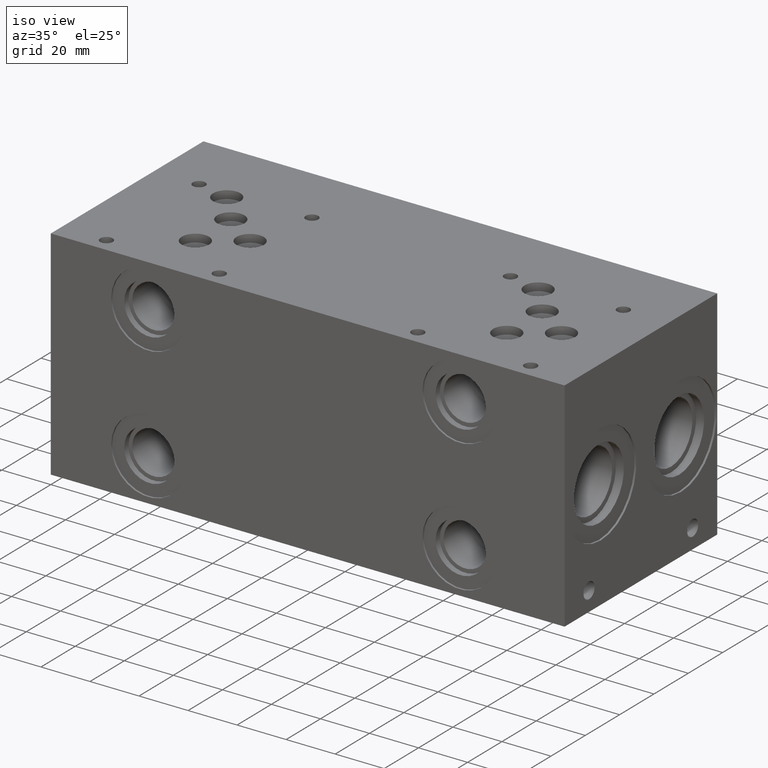
[diagram: clean part render]
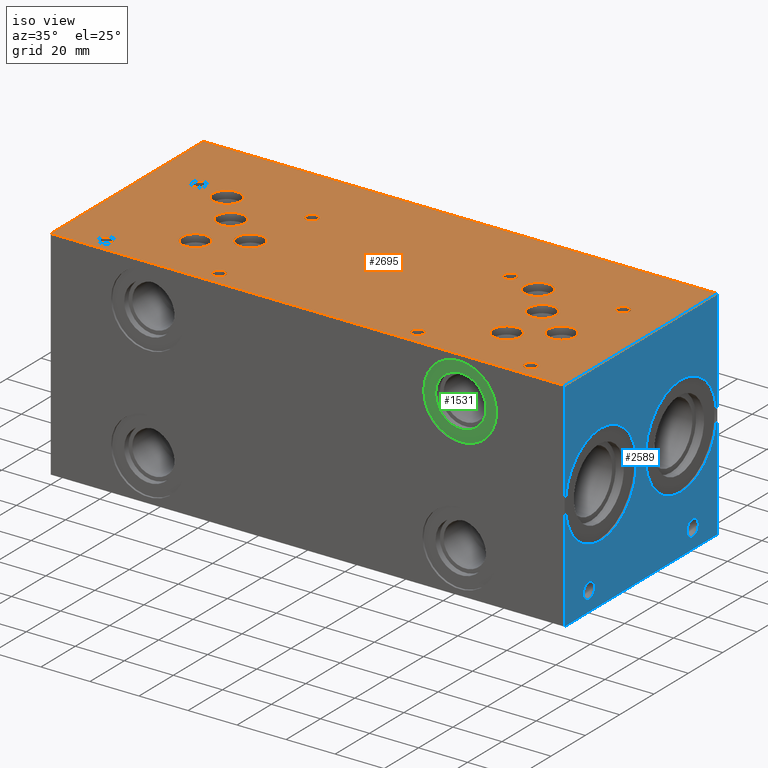
[diagram: same view with three faces highlighted in distinct colors, each labeled with its STEP entity id]
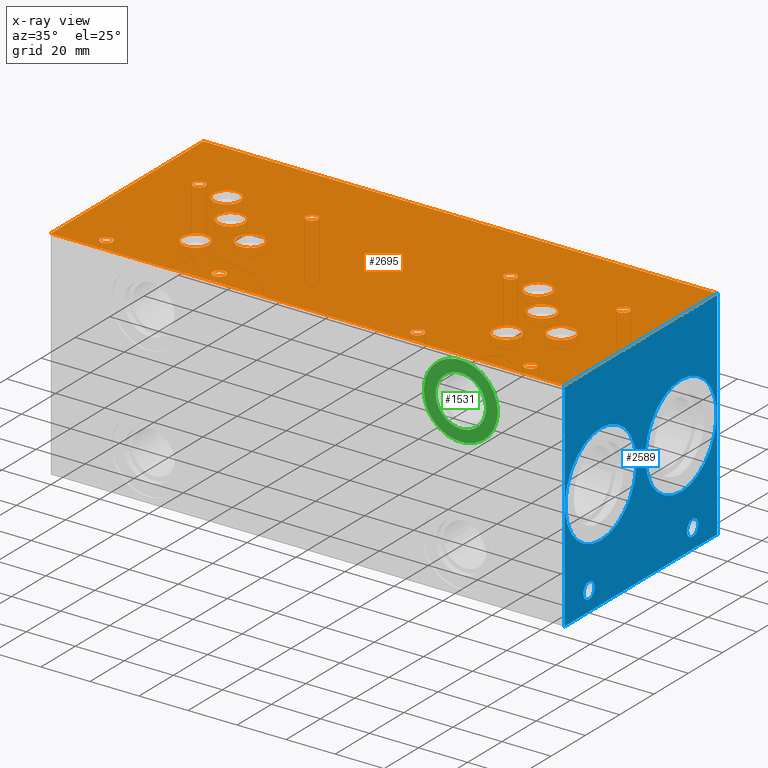
[diagram: x-ray of the same camera — body ghosted, the three highlighted faces saturated]
A machine part, iso view with three faces highlighted in distinct colors.
The next image is the same camera in x-ray (body ghosted, the three faces saturated) — at least one of them is partly hidden behind the body in this view.
Their STEP definitions:

[orange] entity #2695 — the highlighted planar face has unit normal (0, 0, 1).
#1574=CARTESIAN_POINT('',(175.43779999999998,23.0124,88.900000000000006));
#1575=VERTEX_POINT('',#1574);
#1576=CARTESIAN_POINT('',(169.87520000000001,23.0124,88.900000000000006));
#1577=DIRECTION('',(0.0,0.0,-1.0));
#1578=DIRECTION('',(1.0,0.0,0.0));
#1579=AXIS2_PLACEMENT_3D('',#1576,#1577,#1578);
#1580=CIRCLE('',#1579,5.562599999999982);
#1581=EDGE_CURVE('',#1575,#1575,#1580,.T.);
#1611=CARTESIAN_POINT('',(175.43779999999998,43.6372,88.900000000000006));
#1612=VERTEX_POINT('',#1611);
#1613=CARTESIAN_POINT('',(169.87520000000001,43.6372,88.900000000000006));
#1614=DIRECTION('',(0.0,0.0,-1.0));
#1615=DIRECTION('',(1.0,0.0,0.0));
#1616=AXIS2_PLACEMENT_3D('',#1613,#1614,#1615);
#1617=CIRCLE('',#1616,5.562599999999982);
#1618=EDGE_CURVE('',#1612,#1612,#1617,.T.);
#1648=CARTESIAN_POINT('',(164.31260000000003,57.149999999999999,88.900000000000006));
#1649=VERTEX_POINT('',#1648);
#1650=CARTESIAN_POINT('',(158.75,57.149999999999999,88.900000000000006));
#1651=DIRECTION('',(0.0,0.0,-1.0));
#1652=DIRECTION('',(1.0,0.0,0.0));
#1653=AXIS2_PLACEMENT_3D('',#1650,#1651,#1652);
#1654=CIRCLE('',#1653,5.562600000000018);
#1655=EDGE_CURVE('',#1649,#1649,#1654,.T.);
#1685=CARTESIAN_POINT('',(190.52539999999999,33.324800000000003,88.900000000000006));
#1686=VERTEX_POINT('',#1685);
#1687=CARTESIAN_POINT('',(184.96279999999999,33.324800000000003,88.900000000000006));
#1688=DIRECTION('',(0.0,0.0,-1.0));
#1689=DIRECTION('',(1.0,0.0,0.0));
#1690=AXIS2_PLACEMENT_3D('',#1687,#1688,#1689);
#1691=CIRCLE('',#1690,5.562600000000018);
#1692=EDGE_CURVE('',#1686,#1686,#1691,.T.);
#1722=CARTESIAN_POINT('',(147.78989999999999,6.35,88.900000000000006));
#1723=VERTEX_POINT('',#1722);
#1724=CARTESIAN_POINT('',(145.2372,6.35,88.900000000000006));
#1725=DIRECTION('',(0.0,0.0,-1.0));
#1726=DIRECTION('',(1.0,0.0,0.0));
#1727=AXIS2_PLACEMENT_3D('',#1724,#1725,#1726);
#1728=CIRCLE('',#1727,2.552699999999994);
#1729=EDGE_CURVE('',#1723,#1723,#1728,.T.);
#1759=CARTESIAN_POINT('',(193.84010000000001,6.35,88.900000000000006));
#1760=VERTEX_POINT('',#1759);
#1761=CARTESIAN_POINT('',(191.28739999999999,6.35,88.900000000000006));
#1762=DIRECTION('',(0.0,0.0,-1.0));
#1763=DIRECTION('',(1.0,0.0,0.0));
#1764=AXIS2_PLACEMENT_3D('',#1761,#1762,#1763);
#1765=CIRCLE('',#1764,2.552699999999994);
#1766=EDGE_CURVE('',#1760,#1760,#1765,.T.);
#1796=CARTESIAN_POINT('',(193.84010000000001,60.325000000000003,88.900000000000006));
#1797=VERTEX_POINT('',#1796);
#1798=CARTESIAN_POINT('',(191.28739999999999,60.325000000000003,88.900000000000006));
#1799=DIRECTION('',(0.0,0.0,-1.0));
#1800=DIRECTION('',(1.0,0.0,0.0));
#1801=AXIS2_PLACEMENT_3D('',#1798,#1799,#1800);
#1802=CIRCLE('',#1801,2.552699999999994);
#1803=EDGE_CURVE('',#1797,#1797,#1802,.T.);
#1833=CARTESIAN_POINT('',(147.78989999999999,60.325000000000003,88.900000000000006));
#1834=VERTEX_POINT('',#1833);
#1835=CARTESIAN_POINT('',(145.2372,60.325000000000003,88.900000000000006));
#1836=DIRECTION('',(0.0,0.0,-1.0));
#1837=DIRECTION('',(1.0,0.0,0.0));
#1838=AXIS2_PLACEMENT_3D('',#1835,#1836,#1837);
#1839=CIRCLE('',#1838,2.552699999999994);
#1840=EDGE_CURVE('',#1834,#1834,#1839,.T.);
#2184=CARTESIAN_POINT('',(48.43018,23.00732,88.900000000000006));
#2185=VERTEX_POINT('',#2184);
#2186=CARTESIAN_POINT('',(42.867579999999997,23.00732,88.900000000000006));
#2187=DIRECTION('',(0.0,0.0,-1.0));
#2188=DIRECTION('',(1.0,0.0,0.0));
#2189=AXIS2_PLACEMENT_3D('',#2186,#2187,#2188);
#2190=CIRCLE('',#2189,5.5626);
#2191=EDGE_CURVE('',#2185,#2185,#2190,.T.);
#2221=CARTESIAN_POINT('',(48.4251,43.64228,88.900000000000006));
#2222=VERTEX_POINT('',#2221);
#2223=CARTESIAN_POINT('',(42.862499999999997,43.64228,88.900000000000006));
#2224=DIRECTION('',(0.0,0.0,-1.0));
#2225=DIRECTION('',(1.0,0.0,0.0));
#2226=AXIS2_PLACEMENT_3D('',#2223,#2224,#2225);
#2227=CIRCLE('',#2226,5.5626);
#2228=EDGE_CURVE('',#2222,#2222,#2227,.T.);
#2258=CARTESIAN_POINT('',(37.312600000000003,57.149999999999999,88.900000000000006));
#2259=VERTEX_POINT('',#2258);
#2260=CARTESIAN_POINT('',(31.750000000000004,57.149999999999999,88.900000000000006));
#2261=DIRECTION('',(0.0,0.0,-1.0));
#2262=DIRECTION('',(1.0,0.0,0.0));
#2263=AXIS2_PLACEMENT_3D('',#2260,#2261,#2262);
#2264=CIRCLE('',#2263,5.5626);
#2265=EDGE_CURVE('',#2259,#2259,#2264,.T.);
#2295=CARTESIAN_POINT('',(63.525400000000005,33.324800000000003,88.900000000000006));
#2296=VERTEX_POINT('',#2295);
#2297=CARTESIAN_POINT('',(57.962800000000001,33.324800000000003,88.900000000000006));
#2298=DIRECTION('',(0.0,0.0,-1.0));
#2299=DIRECTION('',(1.0,0.0,0.0));
#2300=AXIS2_PLACEMENT_3D('',#2297,#2298,#2299);
#2301=CIRCLE('',#2300,5.5626);
#2302=EDGE_CURVE('',#2296,#2296,#2301,.T.);
#2332=CARTESIAN_POINT('',(20.802599999999998,6.3373,88.900000000000006));
#2333=VERTEX_POINT('',#2332);
#2334=CARTESIAN_POINT('',(18.2499,6.3373,88.900000000000006));
#2335=DIRECTION('',(0.0,0.0,-1.0));
#2336=DIRECTION('',(1.0,0.0,0.0));
#2337=AXIS2_PLACEMENT_3D('',#2334,#2335,#2336);
#2338=CIRCLE('',#2337,2.552699999999999);
#2339=EDGE_CURVE('',#2333,#2333,#2338,.T.);
#2369=CARTESIAN_POINT('',(66.840100000000021,6.3373,88.900000000000006));
#2370=VERTEX_POINT('',#2369);
#2371=CARTESIAN_POINT('',(64.287400000000019,6.3373,88.900000000000006));
#2372=DIRECTION('',(0.0,0.0,-1.0));
#2373=DIRECTION('',(1.0,0.0,0.0));
#2374=AXIS2_PLACEMENT_3D('',#2371,#2372,#2373);
#2375=CIRCLE('',#2374,2.552700000000003);
#2376=EDGE_CURVE('',#2370,#2370,#2375,.T.);
#2406=CARTESIAN_POINT('',(66.840100000000021,60.312300000000008,88.900000000000006));
#2407=VERTEX_POINT('',#2406);
#2408=CARTESIAN_POINT('',(64.287400000000019,60.312300000000008,88.900000000000006));
#2409=DIRECTION('',(0.0,0.0,-1.0));
#2410=DIRECTION('',(1.0,0.0,0.0));
#2411=AXIS2_PLACEMENT_3D('',#2408,#2409,#2410);
#2412=CIRCLE('',#2411,2.552700000000003);
#2413=EDGE_CURVE('',#2407,#2407,#2412,.T.);
#2443=CARTESIAN_POINT('',(20.789900000000003,60.325000000000003,88.900000000000006));
#2444=VERTEX_POINT('',#2443);
#2445=CARTESIAN_POINT('',(18.237200000000001,60.325000000000003,88.900000000000006));
#2446=DIRECTION('',(0.0,0.0,-1.0));
#2447=DIRECTION('',(1.0,0.0,0.0));
#2448=AXIS2_PLACEMENT_3D('',#2445,#2446,#2447);
#2449=CIRCLE('',#2448,2.552699999999999);
#2450=EDGE_CURVE('',#2444,#2444,#2449,.T.);
#2463=CARTESIAN_POINT('',(0.0,0.0,88.900000000000006));
#2464=VERTEX_POINT('',#2463);
#2465=CARTESIAN_POINT('',(0.0,88.900000000000006,88.900000000000006));
#2466=VERTEX_POINT('',#2465);
#2467=CARTESIAN_POINT('',(0.0,0.0,88.900000000000006));
#2468=DIRECTION('',(0.0,1.0,0.0));
#2469=VECTOR('',#2468,88.900000000000006);
#2470=LINE('',#2467,#2469);
#2471=EDGE_CURVE('',#2464,#2466,#2470,.T.);
#2515=CARTESIAN_POINT('',(209.55000000000001,88.900000000000006,88.900000000000006));
#2516=VERTEX_POINT('',#2515);
#2517=CARTESIAN_POINT('',(0.0,88.900000000000006,88.900000000000006));
#2518=DIRECTION('',(1.0,0.0,0.0));
#2519=VECTOR('',#2518,209.55000000000001);
#2520=LINE('',#2517,#2519);
#2521=EDGE_CURVE('',#2466,#2516,#2520,.T.);
#2552=CARTESIAN_POINT('',(209.55000000000001,0.0,88.900000000000006));
#2553=VERTEX_POINT('',#2552);
#2554=CARTESIAN_POINT('',(209.55000000000001,88.900000000000006,88.900000000000006));
#2555=DIRECTION('',(0.0,-1.0,0.0));
#2556=VECTOR('',#2555,88.900000000000006);
#2557=LINE('',#2554,#2556);
#2558=EDGE_CURVE('',#2516,#2553,#2557,.T.);
#2595=CARTESIAN_POINT('',(209.55000000000001,0.0,88.900000000000006));
#2596=DIRECTION('',(-1.0,0.0,0.0));
#2597=VECTOR('',#2596,209.55000000000001);
#2598=LINE('',#2595,#2597);
#2599=EDGE_CURVE('',#2553,#2464,#2598,.T.);
#2636=CARTESIAN_POINT('',(104.77500000000003,44.450000000000003,88.900000000000006));
#2637=DIRECTION('',(0.0,0.0,1.0));
#2638=DIRECTION('',(1.0,0.0,0.0));
#2639=AXIS2_PLACEMENT_3D('',#2636,#2637,#2638);
#2640=PLANE('',#2639);
#2641=ORIENTED_EDGE('',*,*,#2471,.F.);
#2642=ORIENTED_EDGE('',*,*,#2599,.F.);
#2643=ORIENTED_EDGE('',*,*,#2558,.F.);
#2644=ORIENTED_EDGE('',*,*,#2521,.F.);
#2645=EDGE_LOOP('',(#2641,#2642,#2643,#2644));
#2646=FACE_OUTER_BOUND('',#2645,.T.);
#2647=ORIENTED_EDGE('',*,*,#1581,.T.);
#2648=EDGE_LOOP('',(#2647));
#2649=FACE_BOUND('',#2648,.T.);
#2650=ORIENTED_EDGE('',*,*,#1618,.T.);
#2651=EDGE_LOOP('',(#2650));
#2652=FACE_BOUND('',#2651,.T.);
#2653=ORIENTED_EDGE('',*,*,#1655,.T.);
#2654=EDGE_LOOP('',(#2653));
#2655=FACE_BOUND('',#2654,.T.);
#2656=ORIENTED_EDGE('',*,*,#1692,.T.);
#2657=EDGE_LOOP('',(#2656));
#2658=FACE_BOUND('',#2657,.T.);
#2659=ORIENTED_EDGE('',*,*,#1729,.T.);
#2660=EDGE_LOOP('',(#2659));
#2661=FACE_BOUND('',#2660,.T.);
#2662=ORIENTED_EDGE('',*,*,#1766,.T.);
#2663=EDGE_LOOP('',(#2662));
#2664=FACE_BOUND('',#2663,.T.);
#2665=ORIENTED_EDGE('',*,*,#1803,.T.);
#2666=EDGE_LOOP('',(#2665));
#2667=FACE_BOUND('',#2666,.T.);
#2668=ORIENTED_EDGE('',*,*,#1840,.T.);
#2669=EDGE_LOOP('',(#2668));
#2670=FACE_BOUND('',#2669,.T.);
#2671=ORIENTED_EDGE('',*,*,#2191,.T.);
#2672=EDGE_LOOP('',(#2671));
#2673=FACE_BOUND('',#2672,.T.);
#2674=ORIENTED_EDGE('',*,*,#2228,.T.);
#2675=EDGE_LOOP('',(#2674));
#2676=FACE_BOUND('',#2675,.T.);
#2677=ORIENTED_EDGE('',*,*,#2265,.T.);
#2678=EDGE_LOOP('',(#2677));
#2679=FACE_BOUND('',#2678,.T.);
#2680=ORIENTED_EDGE('',*,*,#2302,.T.);
#2681=EDGE_LOOP('',(#2680));
#2682=FACE_BOUND('',#2681,.T.);
#2683=ORIENTED_EDGE('',*,*,#2339,.T.);
#2684=EDGE_LOOP('',(#2683));
#2685=FACE_BOUND('',#2684,.T.);
#2686=ORIENTED_EDGE('',*,*,#2376,.T.);
#2687=EDGE_LOOP('',(#2686));
#2688=FACE_BOUND('',#2687,.T.);
#2689=ORIENTED_EDGE('',*,*,#2413,.T.);
#2690=EDGE_LOOP('',(#2689));
#2691=FACE_BOUND('',#2690,.T.);
#2692=ORIENTED_EDGE('',*,*,#2450,.T.);
#2693=EDGE_LOOP('',(#2692));
#2694=FACE_BOUND('',#2693,.T.);
#2695=ADVANCED_FACE('',(#2646,#2649,#2652,#2655,#2658,#2661,#2664,#2667,#2670,#2673,#2676,#2679,#2682,#2685,#2688,#2691,#2694),#2640,.T.);

[blue] entity #2589 — the highlighted planar face has unit normal (1, 0, 0).
#287=CARTESIAN_POINT('',(209.55000000000001,74.599800000000002,4.660900000000001));
#288=VERTEX_POINT('',#287);
#289=CARTESIAN_POINT('',(209.55000000000001,74.599800000000002,7.924800000000001));
#290=DIRECTION('',(-1.0,0.0,0.0));
#291=DIRECTION('',(0.0,0.0,-1.0));
#292=AXIS2_PLACEMENT_3D('',#289,#290,#291);
#293=CIRCLE('',#292,3.2639);
#294=EDGE_CURVE('',#288,#288,#293,.T.);
#324=CARTESIAN_POINT('',(209.55000000000001,14.274800000000001,4.660900000000001));
#325=VERTEX_POINT('',#324);
#326=CARTESIAN_POINT('',(209.55000000000001,14.274800000000001,7.924800000000001));
#327=DIRECTION('',(-1.0,0.0,0.0));
#328=DIRECTION('',(0.0,0.0,-1.0));
#329=AXIS2_PLACEMENT_3D('',#326,#327,#328);
#330=CIRCLE('',#329,3.2639);
#331=EDGE_CURVE('',#325,#325,#330,.T.);
#752=CARTESIAN_POINT('',(209.55000000000001,67.818000000000012,23.723600000000001));
#753=VERTEX_POINT('',#752);
#754=CARTESIAN_POINT('',(209.55000000000001,67.818000000000012,44.450000000000003));
#755=DIRECTION('',(-1.0,0.0,0.0));
#756=DIRECTION('',(0.0,0.0,-1.0));
#757=AXIS2_PLACEMENT_3D('',#754,#755,#756);
#758=CIRCLE('',#757,20.726400000000002);
#759=EDGE_CURVE('',#753,#753,#758,.T.);
#909=CARTESIAN_POINT('',(209.55000000000001,21.082000000000001,23.723600000000001));
#910=VERTEX_POINT('',#909);
#911=CARTESIAN_POINT('',(209.55000000000001,21.082000000000001,44.450000000000003));
#912=DIRECTION('',(-1.0,0.0,0.0));
#913=DIRECTION('',(0.0,0.0,-1.0));
#914=AXIS2_PLACEMENT_3D('',#911,#912,#913);
#915=CIRCLE('',#914,20.726400000000002);
#916=EDGE_CURVE('',#910,#910,#915,.T.);
#2515=CARTESIAN_POINT('',(209.55000000000001,88.900000000000006,88.900000000000006));
#2516=VERTEX_POINT('',#2515);
#2523=CARTESIAN_POINT('',(209.55000000000001,88.900000000000006,0.0));
#2524=VERTEX_POINT('',#2523);
#2525=CARTESIAN_POINT('',(209.55000000000001,88.900000000000006,0.0));
#2526=DIRECTION('',(0.0,0.0,1.0));
#2527=VECTOR('',#2526,88.900000000000006);
#2528=LINE('',#2525,#2527);
#2529=EDGE_CURVE('',#2524,#2516,#2528,.T.);
#2547=CARTESIAN_POINT('',(209.55000000000001,88.900000000000006,0.0));
#2548=DIRECTION('',(1.0,0.0,0.0));
#2549=DIRECTION('',(0.0,0.0,-1.0));
#2550=AXIS2_PLACEMENT_3D('',#2547,#2548,#2549);
#2551=PLANE('',#2550);
#2552=CARTESIAN_POINT('',(209.55000000000001,0.0,88.900000000000006));
#2553=VERTEX_POINT('',#2552);
#2554=CARTESIAN_POINT('',(209.55000000000001,88.900000000000006,88.900000000000006));
#2555=DIRECTION('',(0.0,-1.0,0.0));
#2556=VECTOR('',#2555,88.900000000000006);
#2557=LINE('',#2554,#2556);
#2558=EDGE_CURVE('',#2516,#2553,#2557,.T.);
#2559=ORIENTED_EDGE('',*,*,#2558,.T.);
#2560=CARTESIAN_POINT('',(209.55000000000001,0.0,0.0));
#2561=VERTEX_POINT('',#2560);
#2562=CARTESIAN_POINT('',(209.55000000000001,0.0,0.0));
#2563=DIRECTION('',(0.0,0.0,1.0));
#2564=VECTOR('',#2563,88.900000000000006);
#2565=LINE('',#2562,#2564);
#2566=EDGE_CURVE('',#2561,#2553,#2565,.T.);
#2567=ORIENTED_EDGE('',*,*,#2566,.F.);
#2568=CARTESIAN_POINT('',(209.55000000000001,0.0,0.0));
#2569=DIRECTION('',(0.0,1.0,0.0));
#2570=VECTOR('',#2569,88.900000000000006);
#2571=LINE('',#2568,#2570);
#2572=EDGE_CURVE('',#2561,#2524,#2571,.T.);
#2573=ORIENTED_EDGE('',*,*,#2572,.T.);
#2574=ORIENTED_EDGE('',*,*,#2529,.T.);
#2575=EDGE_LOOP('',(#2559,#2567,#2573,#2574));
#2576=FACE_OUTER_BOUND('',#2575,.T.);
#2577=ORIENTED_EDGE('',*,*,#294,.T.);
#2578=EDGE_LOOP('',(#2577));
#2579=FACE_BOUND('',#2578,.T.);
#2580=ORIENTED_EDGE('',*,*,#331,.T.);
#2581=EDGE_LOOP('',(#2580));
#2582=FACE_BOUND('',#2581,.T.);
#2583=ORIENTED_EDGE('',*,*,#759,.T.);
#2584=EDGE_LOOP('',(#2583));
#2585=FACE_BOUND('',#2584,.T.);
#2586=ORIENTED_EDGE('',*,*,#916,.T.);
#2587=EDGE_LOOP('',(#2586));
#2588=FACE_BOUND('',#2587,.T.);
#2589=ADVANCED_FACE('',(#2576,#2579,#2582,#2585,#2588),#2551,.T.);

[green] entity #1531 — the highlighted planar face has unit normal (0, 1, 0).
#1497=CARTESIAN_POINT('',(176.97450000000001,0.7874,71.424800000000005));
#1498=VERTEX_POINT('',#1497);
#1499=CARTESIAN_POINT('',(166.6748,0.7874,71.424800000000005));
#1500=DIRECTION('',(0.0,-1.0,0.0));
#1501=DIRECTION('',(1.0,0.0,0.0));
#1502=AXIS2_PLACEMENT_3D('',#1499,#1500,#1501);
#1503=CIRCLE('',#1502,10.299699999999987);
#1504=EDGE_CURVE('',#1498,#1498,#1503,.T.);
#1512=CARTESIAN_POINT('',(179.38749999999999,0.7874,71.424800000000005));
#1513=DIRECTION('',(0.0,1.0,0.0));
#1514=DIRECTION('',(0.0,0.0,1.0));
#1515=AXIS2_PLACEMENT_3D('',#1512,#1513,#1514);
#1516=PLANE('',#1515);
#1517=CARTESIAN_POINT('',(181.8005,0.7874,71.424800000000005));
#1518=VERTEX_POINT('',#1517);
#1519=CARTESIAN_POINT('',(166.6748,0.7874,71.424800000000005));
#1520=DIRECTION('',(0.0,-1.0,0.0));
#1521=DIRECTION('',(1.0,0.0,0.0));
#1522=AXIS2_PLACEMENT_3D('',#1519,#1520,#1521);
#1523=CIRCLE('',#1522,15.125700000000002);
#1524=EDGE_CURVE('',#1518,#1518,#1523,.T.);
#1525=ORIENTED_EDGE('',*,*,#1524,.T.);
#1526=EDGE_LOOP('',(#1525));
#1527=FACE_OUTER_BOUND('',#1526,.T.);
#1528=ORIENTED_EDGE('',*,*,#1504,.F.);
#1529=EDGE_LOOP('',(#1528));
#1530=FACE_BOUND('',#1529,.T.);
#1531=ADVANCED_FACE('',(#1527,#1530),#1516,.F.);